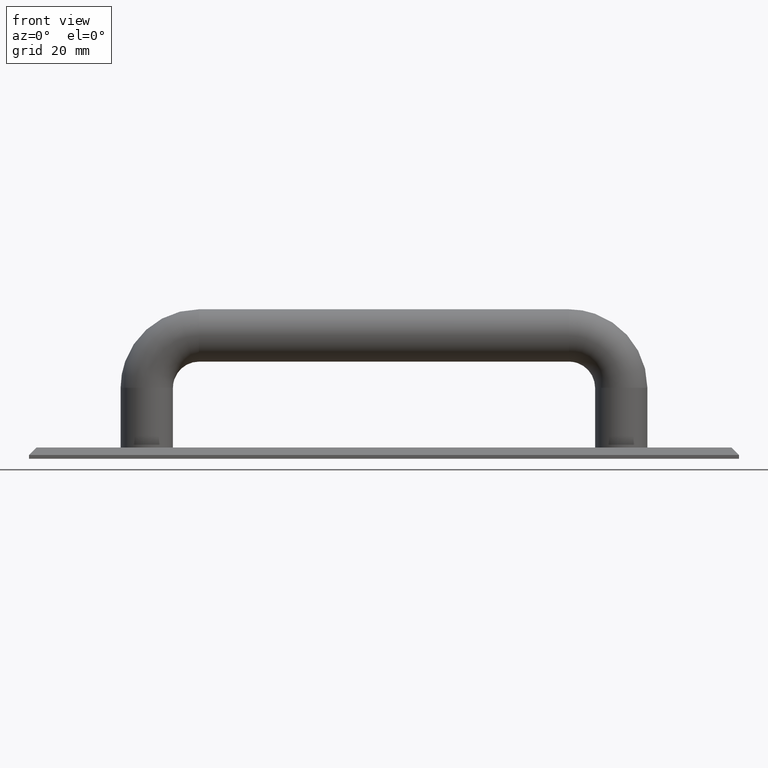
[diagram: clean part render]
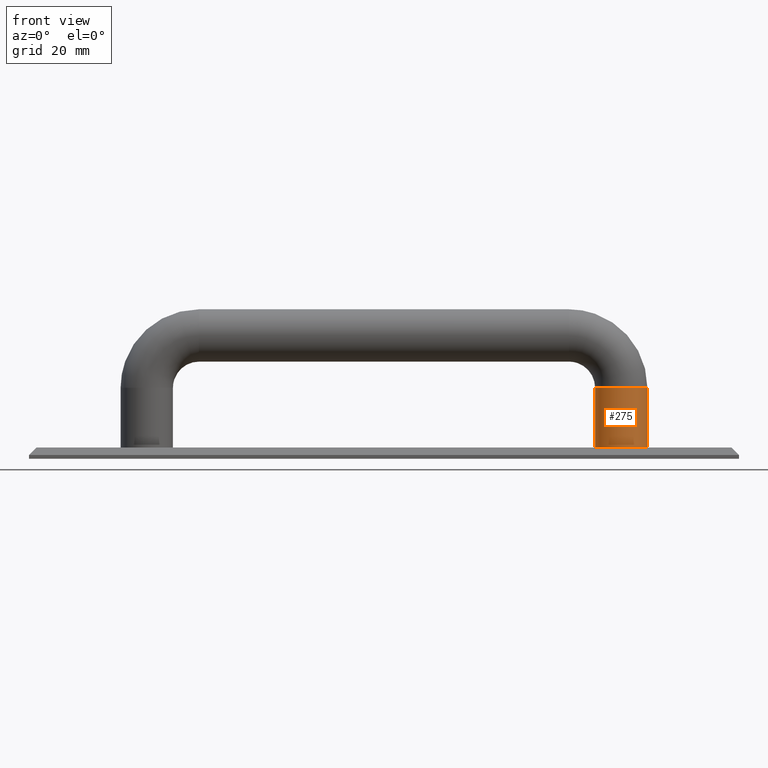
[diagram: same view with one face highlighted and labeled with its STEP entity id]
A machine part, front view. The second image highlights one B-rep face of the part: STEP entity #275.
In plain terms, the highlighted cylindrical surface (bore or boss wall) has radius 7 mm, axis along (-0, 0, 1).
Its self-contained STEP definition (entity closure, byte-faithful):
#70=FACE_BOUND('',#106,.T.);
#85=FACE_OUTER_BOUND('',#105,.T.);
#105=EDGE_LOOP('',(#207));
#106=EDGE_LOOP('',(#208));
#139=CIRCLE('',#299,7.);
#140=CIRCLE('',#300,7.);
#151=VERTEX_POINT('',#417);
#152=VERTEX_POINT('',#419);
#175=EDGE_CURVE('',#151,#151,#139,.T.);
#176=EDGE_CURVE('',#152,#152,#140,.T.);
#207=ORIENTED_EDGE('',*,*,#175,.T.);
#208=ORIENTED_EDGE('',*,*,#176,.F.);
#270=CYLINDRICAL_SURFACE('',#298,7.);
#275=ADVANCED_FACE('',(#85,#70),#270,.T.);
#298=AXIS2_PLACEMENT_3D('',#416,#334,#335);
#299=AXIS2_PLACEMENT_3D('',#418,#336,#337);
#300=AXIS2_PLACEMENT_3D('',#420,#338,#339);
#334=DIRECTION('center_axis',(-9.34924652315921E-16,0.,1.));
#335=DIRECTION('ref_axis',(-1.,0.,-9.34924652315921E-16));
#336=DIRECTION('center_axis',(9.34924652315921E-16,0.,-1.));
#337=DIRECTION('ref_axis',(-1.,0.,-9.34924652315921E-16));
#338=DIRECTION('center_axis',(0.,0.,-1.));
#339=DIRECTION('ref_axis',(-1.,0.,-9.34924652315921E-16));
#416=CARTESIAN_POINT('Origin',(158.5,12.5,0.));
#417=CARTESIAN_POINT('',(165.5,12.5,19.));
#418=CARTESIAN_POINT('Origin',(158.5,12.5,19.));
#419=CARTESIAN_POINT('',(165.5,12.5,3.00000000000007));
#420=CARTESIAN_POINT('Origin',(158.5,12.5,3.00000000000006));